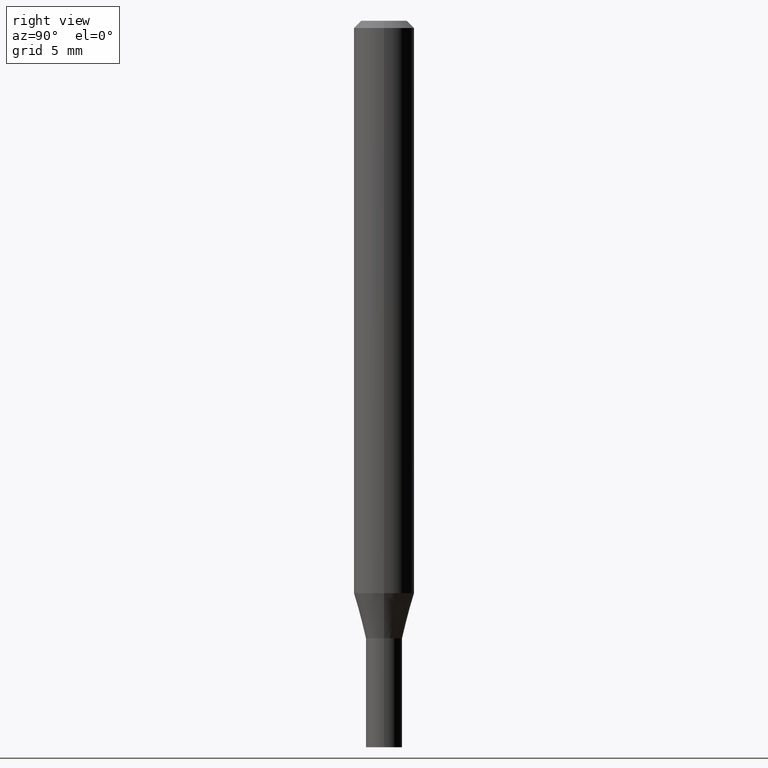
[diagram: clean part render]
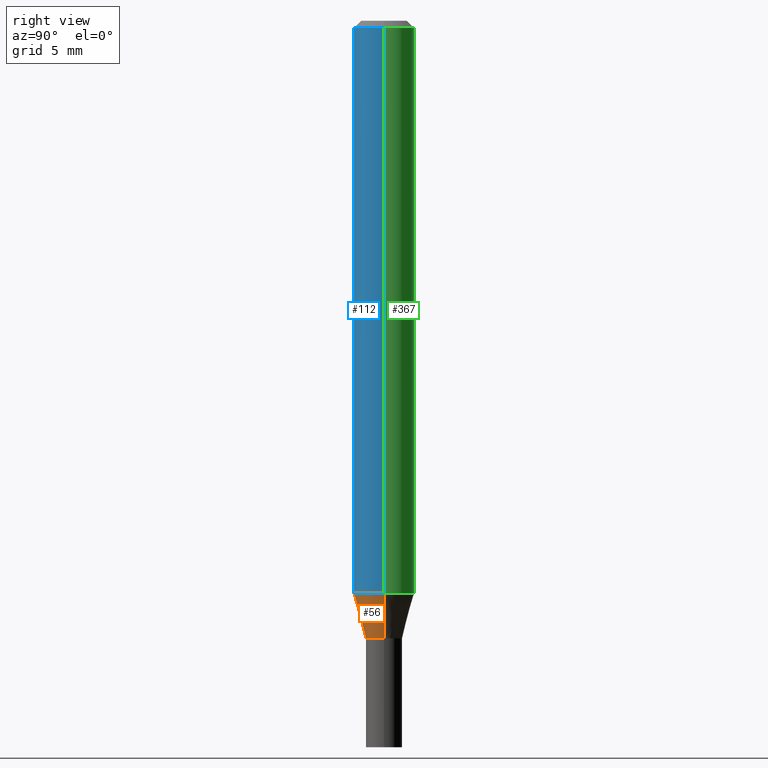
[diagram: same view with three faces highlighted in distinct colors, each labeled with its STEP entity id]
A machine part, right view with three faces highlighted in distinct colors.
Their STEP definitions:

[orange] entity #56 — the highlighted conical surface has half-angle 15 deg.
#11 = CIRCLE ( 'NONE', #65, 0.03750000000000019984 ) ;
#39 = FACE_OUTER_BOUND ( 'NONE', #171, .T. ) ;
#41 = ORIENTED_EDGE ( 'NONE', *, *, #246, .F. ) ;
#56 = ADVANCED_FACE ( 'NONE', ( #39 ), #386, .T. ) ;
#57 = DIRECTION ( 'NONE',  ( -2.445468806185136597E-29, 3.491481338843145583E-15, 1.000000000000000000 ) ) ;
#65 = AXIS2_PLACEMENT_3D ( 'NONE', #361, #57, #233 ) ;
#74 = LINE ( 'NONE', #182, #426 ) ;
#75 = EDGE_CURVE ( 'NONE', #86, #376, #74, .T. ) ;
#76 = AXIS2_PLACEMENT_3D ( 'NONE', #156, #84, #378 ) ;
#84 = DIRECTION ( 'NONE',  ( -2.445468806185136597E-29, 3.491481338843145583E-15, 1.000000000000000000 ) ) ;
#86 = VERTEX_POINT ( 'NONE', #437 ) ;
#121 = ORIENTED_EDGE ( 'NONE', *, *, #75, .F. ) ;
#137 = LINE ( 'NONE', #363, #155 ) ;
#155 = VECTOR ( 'NONE', #360, 39.37007874015748143 ) ;
#156 = CARTESIAN_POINT ( 'NONE',  ( 2.889807382060858939E-29, -4.125879063268984443E-15, -1.181698729810779280 ) ) ;
#171 = EDGE_LOOP ( 'NONE', ( #121, #189, #308, #41 ) ) ;
#172 = CARTESIAN_POINT ( 'NONE',  ( -0.06250000000000000000, -3.681789853418921827E-15, -1.181698729810779280 ) ) ;
#182 = CARTESIAN_POINT ( 'NONE',  ( -0.03750000000000019984, -4.185185181114972604E-15, -1.275000000000000133 ) ) ;
#189 = ORIENTED_EDGE ( 'NONE', *, *, #435, .T. ) ;
#215 = DIRECTION ( 'NONE',  ( -0.2588190451025216277, 5.211531920934551831E-15, 0.9659258262890679791 ) ) ;
#233 = DIRECTION ( 'NONE',  ( 1.000000000000000000, -6.982962677686257244E-15, 0.000000000000000000 ) ) ;
#246 = EDGE_CURVE ( 'NONE', #376, #318, #302, .T. ) ;
#301 = AXIS2_PLACEMENT_3D ( 'NONE', #337, #340, #329 ) ;
#302 = CIRCLE ( 'NONE', #76, 0.06250000000000000000 ) ;
#308 = ORIENTED_EDGE ( 'NONE', *, *, #398, .T. ) ;
#318 = VERTEX_POINT ( 'NONE', #322 ) ;
#322 = CARTESIAN_POINT ( 'NONE',  ( 0.06250000000000000000, -4.562314230624376113E-15, -1.181698729810779280 ) ) ;
#329 = DIRECTION ( 'NONE',  ( 1.000000000000000000, -6.982962677686257244E-15, 0.000000000000000000 ) ) ;
#337 = CARTESIAN_POINT ( 'NONE',  ( 3.117972727886049049E-29, -4.451638707025011594E-15, -1.275000000000000133 ) ) ;
#340 = DIRECTION ( 'NONE',  ( -2.445468806185136597E-29, 3.491481338843145583E-15, 1.000000000000000000 ) ) ;
#360 = DIRECTION ( 'NONE',  ( 0.2588190451025216277, 1.565188264969619995E-15, 0.9659258262890679791 ) ) ;
#361 = CARTESIAN_POINT ( 'NONE',  ( 3.117972727886049049E-29, -4.451638707025011594E-15, -1.275000000000000133 ) ) ;
#363 = CARTESIAN_POINT ( 'NONE',  ( 0.03750000000000019984, -4.713499807438247385E-15, -1.275000000000000133 ) ) ;
#376 = VERTEX_POINT ( 'NONE', #172 ) ;
#378 = DIRECTION ( 'NONE',  ( 1.000000000000000000, -6.982962677686262766E-15, 0.000000000000000000 ) ) ;
#386 = CONICAL_SURFACE ( 'NONE', #301, 0.03750000000000019984, 0.2617993877991502960 ) ;
#395 = CARTESIAN_POINT ( 'NONE',  ( 0.03750000000000019984, -4.713499807438247385E-15, -1.275000000000000133 ) ) ;
#398 = EDGE_CURVE ( 'NONE', #458, #318, #137, .T. ) ;
#426 = VECTOR ( 'NONE', #215, 39.37007874015748143 ) ;
#435 = EDGE_CURVE ( 'NONE', #86, #458, #11, .T. ) ;
#437 = CARTESIAN_POINT ( 'NONE',  ( -0.03750000000000019984, -3.933487517266947610E-15, -1.275000000000000133 ) ) ;
#458 = VERTEX_POINT ( 'NONE', #395 ) ;

[blue] entity #112 — the highlighted cylindrical surface (edge-blend (fillet) strip) has radius 1.5875 mm, axis along (-0, 0, 1).
#23 = ORIENTED_EDGE ( 'NONE', *, *, #286, .T. ) ;
#33 = VECTOR ( 'NONE', #61, 39.37007874015748143 ) ;
#53 = VERTEX_POINT ( 'NONE', #354 ) ;
#61 = DIRECTION ( 'NONE',  ( -2.445468806185136877E-29, 3.491481338843145188E-15, 1.000000000000000000 ) ) ;
#63 = DIRECTION ( 'NONE',  ( 1.000000000000000000, -6.982962677686266711E-15, 0.000000000000000000 ) ) ;
#76 = AXIS2_PLACEMENT_3D ( 'NONE', #156, #84, #378 ) ;
#77 = DIRECTION ( 'NONE',  ( -2.445468806185136597E-29, 3.491481338843145583E-15, 1.000000000000000000 ) ) ;
#79 = DIRECTION ( 'NONE',  ( 1.000000000000000000, -6.982962677686266711E-15, 4.876176775795935793E-29 ) ) ;
#84 = DIRECTION ( 'NONE',  ( -2.445468806185136597E-29, 3.491481338843145583E-15, 1.000000000000000000 ) ) ;
#97 = AXIS2_PLACEMENT_3D ( 'NONE', #257, #77, #79 ) ;
#112 = ADVANCED_FACE ( 'NONE', ( #300 ), #154, .T. ) ;
#115 = AXIS2_PLACEMENT_3D ( 'NONE', #428, #143, #63 ) ;
#143 = DIRECTION ( 'NONE',  ( -2.445468806185136597E-29, 3.491481338843145583E-15, 1.000000000000000000 ) ) ;
#154 = CYLINDRICAL_SURFACE ( 'NONE', #97, 0.06250000000000000000 ) ;
#156 = CARTESIAN_POINT ( 'NONE',  ( 2.889807382060858939E-29, -4.125879063268984443E-15, -1.181698729810779280 ) ) ;
#172 = CARTESIAN_POINT ( 'NONE',  ( -0.06250000000000000000, -3.681789853418921827E-15, -1.181698729810779280 ) ) ;
#192 = ORIENTED_EDGE ( 'NONE', *, *, #352, .F. ) ;
#193 = EDGE_CURVE ( 'NONE', #376, #377, #375, .T. ) ;
#203 = CARTESIAN_POINT ( 'NONE',  ( 0.06250000000000000000, -4.364351673553916694E-16, 3.047610484872459871E-30 ) ) ;
#246 = EDGE_CURVE ( 'NONE', #376, #318, #302, .T. ) ;
#257 = CARTESIAN_POINT ( 'NONE',  ( 0.000000000000000000, 0.000000000000000000, 0.000000000000000000 ) ) ;
#259 = CIRCLE ( 'NONE', #115, 0.06250000000000000000 ) ;
#265 = VECTOR ( 'NONE', #306, 39.37007874015748143 ) ;
#286 = EDGE_CURVE ( 'NONE', #318, #53, #411, .T. ) ;
#300 = FACE_OUTER_BOUND ( 'NONE', #307, .T. ) ;
#302 = CIRCLE ( 'NONE', #76, 0.06250000000000000000 ) ;
#306 = DIRECTION ( 'NONE',  ( -2.445468806185136877E-29, 3.491481338843145188E-15, 1.000000000000000000 ) ) ;
#307 = EDGE_LOOP ( 'NONE', ( #369, #373, #23, #192 ) ) ;
#318 = VERTEX_POINT ( 'NONE', #322 ) ;
#319 = CARTESIAN_POINT ( 'NONE',  ( -0.06250000000000000000, -1.645036431825753145E-15, -0.01499999999999999944 ) ) ;
#322 = CARTESIAN_POINT ( 'NONE',  ( 0.06250000000000000000, -4.562314230624376113E-15, -1.181698729810779280 ) ) ;
#345 = CARTESIAN_POINT ( 'NONE',  ( -0.06250000000000000000, 4.440892098500626162E-16, -3.074334431409316114E-30 ) ) ;
#352 = EDGE_CURVE ( 'NONE', #377, #53, #259, .T. ) ;
#354 = CARTESIAN_POINT ( 'NONE',  ( 0.06250000000000000000, -4.888073874380388472E-16, -0.01499999999999999944 ) ) ;
#369 = ORIENTED_EDGE ( 'NONE', *, *, #193, .F. ) ;
#373 = ORIENTED_EDGE ( 'NONE', *, *, #246, .T. ) ;
#375 = LINE ( 'NONE', #345, #265 ) ;
#376 = VERTEX_POINT ( 'NONE', #172 ) ;
#377 = VERTEX_POINT ( 'NONE', #319 ) ;
#378 = DIRECTION ( 'NONE',  ( 1.000000000000000000, -6.982962677686262766E-15, 0.000000000000000000 ) ) ;
#411 = LINE ( 'NONE', #203, #33 ) ;
#428 = CARTESIAN_POINT ( 'NONE',  ( 3.668203209277705088E-31, -5.237222008264718399E-17, -0.01499999999999999944 ) ) ;

[green] entity #367 — the highlighted cylindrical surface (edge-blend (fillet) strip) has radius 1.5875 mm, axis along (-0, 0, 1).
#14 = DIRECTION ( 'NONE',  ( -2.445468806185136597E-29, 3.491481338843145583E-15, 1.000000000000000000 ) ) ;
#33 = VECTOR ( 'NONE', #61, 39.37007874015748143 ) ;
#40 = EDGE_CURVE ( 'NONE', #318, #376, #114, .T. ) ;
#49 = EDGE_LOOP ( 'NONE', ( #346, #232, #347, #124 ) ) ;
#53 = VERTEX_POINT ( 'NONE', #354 ) ;
#61 = DIRECTION ( 'NONE',  ( -2.445468806185136877E-29, 3.491481338843145188E-15, 1.000000000000000000 ) ) ;
#98 = DIRECTION ( 'NONE',  ( 1.000000000000000000, -6.982962677686266711E-15, 4.876176775795935793E-29 ) ) ;
#103 = CARTESIAN_POINT ( 'NONE',  ( 0.000000000000000000, 0.000000000000000000, 0.000000000000000000 ) ) ;
#114 = CIRCLE ( 'NONE', #271, 0.06250000000000000000 ) ;
#124 = ORIENTED_EDGE ( 'NONE', *, *, #286, .F. ) ;
#162 = CARTESIAN_POINT ( 'NONE',  ( 2.889807382060858939E-29, -4.125879063268984443E-15, -1.181698729810779280 ) ) ;
#172 = CARTESIAN_POINT ( 'NONE',  ( -0.06250000000000000000, -3.681789853418921827E-15, -1.181698729810779280 ) ) ;
#183 = DIRECTION ( 'NONE',  ( 1.000000000000000000, -6.982962677686266711E-15, 0.000000000000000000 ) ) ;
#193 = EDGE_CURVE ( 'NONE', #376, #377, #375, .T. ) ;
#203 = CARTESIAN_POINT ( 'NONE',  ( 0.06250000000000000000, -4.364351673553916694E-16, 3.047610484872459871E-30 ) ) ;
#210 = EDGE_CURVE ( 'NONE', #53, #377, #211, .T. ) ;
#211 = CIRCLE ( 'NONE', #323, 0.06250000000000000000 ) ;
#232 = ORIENTED_EDGE ( 'NONE', *, *, #193, .T. ) ;
#265 = VECTOR ( 'NONE', #306, 39.37007874015748143 ) ;
#271 = AXIS2_PLACEMENT_3D ( 'NONE', #162, #275, #383 ) ;
#275 = DIRECTION ( 'NONE',  ( -2.445468806185136597E-29, 3.491481338843145583E-15, 1.000000000000000000 ) ) ;
#286 = EDGE_CURVE ( 'NONE', #318, #53, #411, .T. ) ;
#291 = DIRECTION ( 'NONE',  ( -2.445468806185136597E-29, 3.491481338843145583E-15, 1.000000000000000000 ) ) ;
#306 = DIRECTION ( 'NONE',  ( -2.445468806185136877E-29, 3.491481338843145188E-15, 1.000000000000000000 ) ) ;
#309 = CARTESIAN_POINT ( 'NONE',  ( 3.668203209277705088E-31, -5.237222008264718399E-17, -0.01499999999999999944 ) ) ;
#318 = VERTEX_POINT ( 'NONE', #322 ) ;
#319 = CARTESIAN_POINT ( 'NONE',  ( -0.06250000000000000000, -1.645036431825753145E-15, -0.01499999999999999944 ) ) ;
#322 = CARTESIAN_POINT ( 'NONE',  ( 0.06250000000000000000, -4.562314230624376113E-15, -1.181698729810779280 ) ) ;
#323 = AXIS2_PLACEMENT_3D ( 'NONE', #309, #14, #183 ) ;
#327 = FACE_OUTER_BOUND ( 'NONE', #49, .T. ) ;
#345 = CARTESIAN_POINT ( 'NONE',  ( -0.06250000000000000000, 4.440892098500626162E-16, -3.074334431409316114E-30 ) ) ;
#346 = ORIENTED_EDGE ( 'NONE', *, *, #40, .T. ) ;
#347 = ORIENTED_EDGE ( 'NONE', *, *, #210, .F. ) ;
#351 = AXIS2_PLACEMENT_3D ( 'NONE', #103, #291, #98 ) ;
#354 = CARTESIAN_POINT ( 'NONE',  ( 0.06250000000000000000, -4.888073874380388472E-16, -0.01499999999999999944 ) ) ;
#356 = CYLINDRICAL_SURFACE ( 'NONE', #351, 0.06250000000000000000 ) ;
#367 = ADVANCED_FACE ( 'NONE', ( #327 ), #356, .T. ) ;
#375 = LINE ( 'NONE', #345, #265 ) ;
#376 = VERTEX_POINT ( 'NONE', #172 ) ;
#377 = VERTEX_POINT ( 'NONE', #319 ) ;
#383 = DIRECTION ( 'NONE',  ( 1.000000000000000000, -6.982962677686262766E-15, 0.000000000000000000 ) ) ;
#411 = LINE ( 'NONE', #203, #33 ) ;